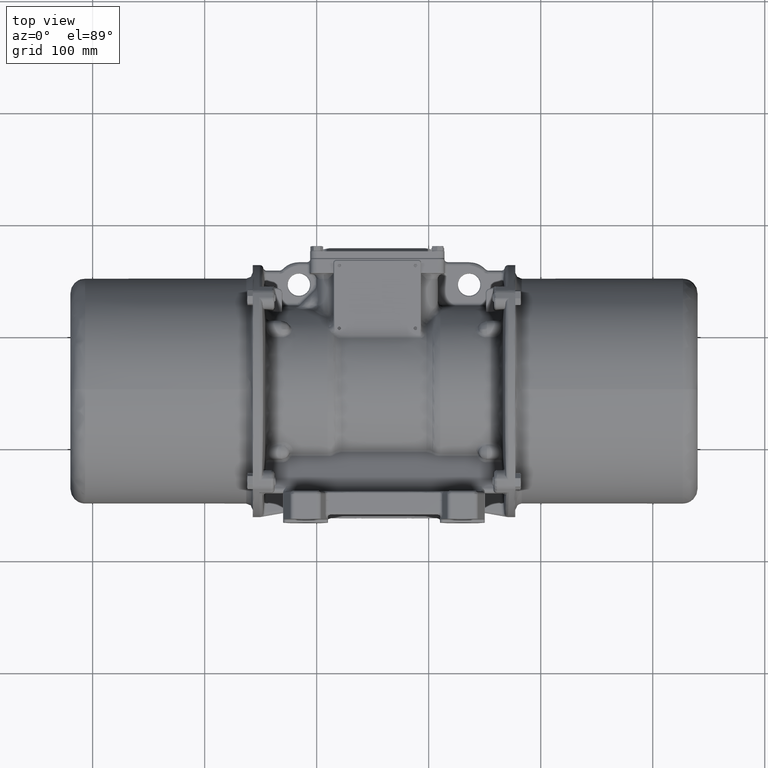
[diagram: clean part render]
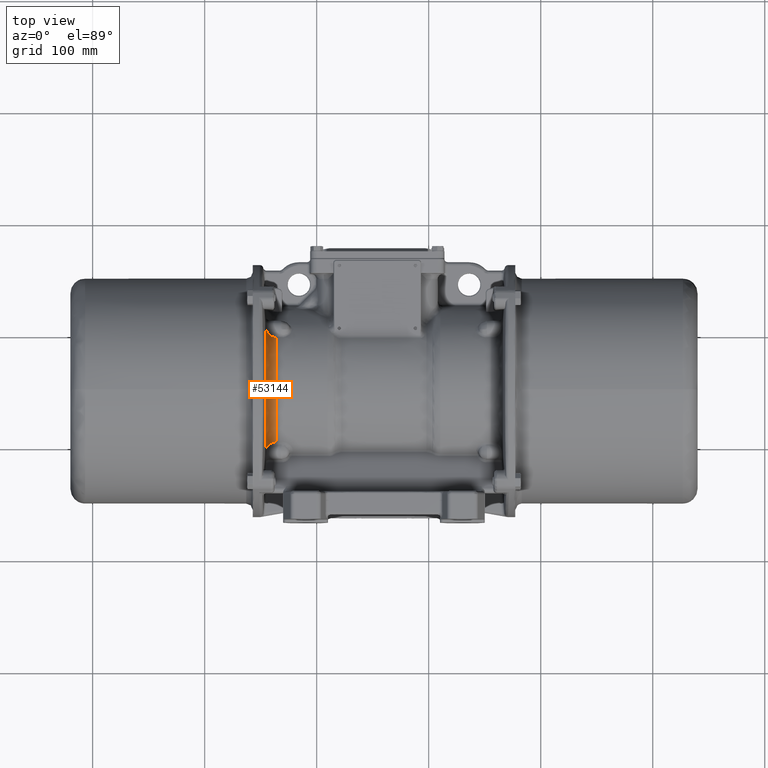
[diagram: same view with one face highlighted and labeled with its STEP entity id]
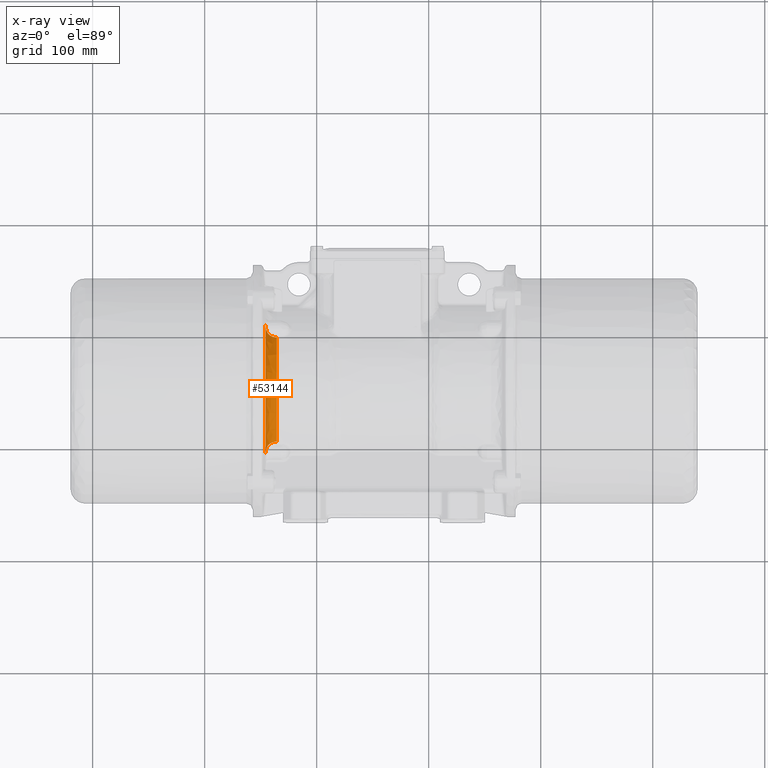
[diagram: x-ray of the same camera — body ghosted, the highlighted face saturated]
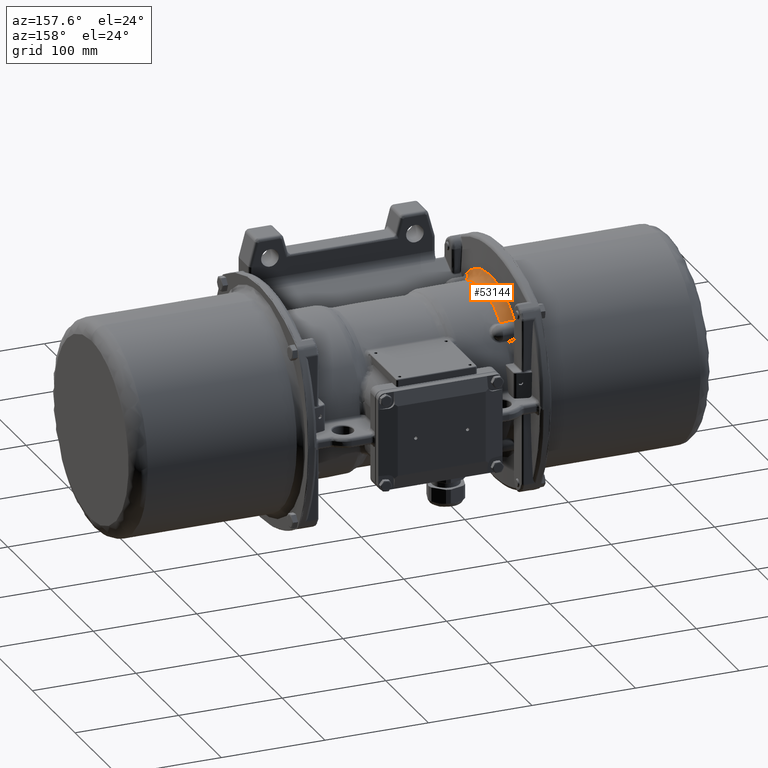
[diagram: same view with one face highlighted and labeled with its STEP entity id]
A machine part, top view. The second image highlights one B-rep face of the part: STEP entity #53144.
The next image is the same camera in x-ray: the body ghosted, the highlighted face saturated — about 0% of this face is hidden behind the body in this view.
A second angle (auxiliary view) of the same face is appended — the face is thin or edge-on in the first view.
In plain terms, the highlighted face is a freeform B-spline surface patch.
Its self-contained STEP definition (entity closure, byte-faithful):
#520 = CARTESIAN_POINT ( 'NONE',  ( -142.5077446967135900, 779.3587052462286200, 9.230455600188939500 ) ) ;
#1082 = CARTESIAN_POINT ( 'NONE',  ( -144.3957904430214400, 696.7704500129706300, -3.063948907812495700 ) ) ;
#1653 = CARTESIAN_POINT ( 'NONE',  ( -142.5077453970952800, 698.4245979816685100, -4.970056409340103600 ) ) ;
#3982 = CARTESIAN_POINT ( 'NONE',  ( -143.3464949321814000, 700.6518876849644400, -1.537818146740758300 ) ) ;
#4445 = CARTESIAN_POINT ( 'NONE',  ( -145.5557889681976500, 720.5663174646668900, 16.24945134960585600 ) ) ;
#4525 = CARTESIAN_POINT ( 'NONE',  ( -144.7894314446837700, 698.1803257343574400, -0.5027693857013314500 ) ) ;
#5698 = CARTESIAN_POINT ( 'NONE',  ( -145.5557889681976700, 697.9678305674347000, 3.469440319891926400 ) ) ;
#5748 = CARTESIAN_POINT ( 'NONE',  ( -141.9546256849936900, 798.9410004199087300, -2.725875379833544900 ) ) ;
#6305 = CARTESIAN_POINT ( 'NONE',  ( -145.5557893416661000, 807.9189332914417000, -1.374033864352183900 ) ) ;
#6309 = CARTESIAN_POINT ( 'NONE',  ( -143.3163920306446100, 800.2516862259096800, -2.031646002320817600 ) ) ;
#7438 = CARTESIAN_POINT ( 'NONE',  ( -145.5333110613728100, 807.3353885860622100, -1.189034737036057900 ) ) ;
#7855 = B_SPLINE_CURVE_WITH_KNOTS ( 'NONE', 3,
 ( #97712, #30724, #57383, #121627, #56821, #83547, #45478, #122176, #43775, #44907, #160154, #136319, #147653, #58490, #18257, #5748, #44344, #109064, #134096, #6309, #18820, #160711, #149335, #109628, #19959, #82986, #97152, #71037, #122742, #32429 ),
 .UNSPECIFIED., .F., .F.,
 ( 4, 2, 2, 2, 2, 1, 1, 1, 1, 2, 2, 2, 2, 2, 2, 2, 4 ),
 ( 0.0000000000000000000, 0.1250000000004848900, 0.2500000000009697800, 0.3750000000014546700, 0.4375000000016913100, 0.4687500000018166600, 0.4843750000018792700, 0.4921875000019054200, 0.4960937500019131400, 0.4980468750019088600, 0.5000000000019044800, 0.6250000000014378500, 0.6875000000012025900, 0.7500000000009673400, 0.8125000000007320800, 0.8750000000004967100, 1.000000000000000000 ),
 .UNSPECIFIED. ) ;
#7944 = CARTESIAN_POINT ( 'NONE',  ( -145.5557889681977000, 781.8255729297828800, 15.47108491240754800 ) ) ;
#10829 = CARTESIAN_POINT ( 'NONE',  ( -135.5938461355628100, 711.0975621852622900, 1.657687733680759800 ) ) ;
#11937 = CARTESIAN_POINT ( 'NONE',  ( -136.2110980237831700, 711.0975620816761900, 1.657687917715061600 ) ) ;
#12488 = CARTESIAN_POINT ( 'NONE',  ( -139.8290172780587000, 765.2002792703298200, 11.65335643199047400 ) ) ;
#13057 = CARTESIAN_POINT ( 'NONE',  ( -137.4489689215179200, 703.4609636101715800, -3.697102894446683900 ) ) ;
#13635 = CARTESIAN_POINT ( 'NONE',  ( -145.2792948758250600, 695.2552080520066500, -1.317905557821533100 ) ) ;
#14206 = CARTESIAN_POINT ( 'NONE',  ( -145.5019918775986100, 751.2596632312404400, 20.87502913832105400 ) ) ;
#14756 = CARTESIAN_POINT ( 'NONE',  ( -145.2792948744463500, 707.3736310102524400, 7.972159279914140300 ) ) ;
#17617 = CARTESIAN_POINT ( 'NONE',  ( -145.5557888022031800, 694.0536394747855400, 0.07298018463589017700 ) ) ;
#18175 = CARTESIAN_POINT ( 'NONE',  ( -145.1745936813181000, 696.8520191747503500, -0.1721667830302969500 ) ) ;
#18257 = CARTESIAN_POINT ( 'NONE',  ( -141.9433417470337700, 798.9324841677467900, -2.730975229813108000 ) ) ;
#18820 = CARTESIAN_POINT ( 'NONE',  ( -143.4754916972303000, 800.4555403952356300, -1.939830551712276000 ) ) ;
#19301 = CARTESIAN_POINT ( 'NONE',  ( -145.5179294418950900, 694.6361561404594300, 0.08154623016550230400 ) ) ;
#19959 = CARTESIAN_POINT ( 'NONE',  ( -144.2906310311515500, 801.7805034444439800, -1.446112289863432700 ) ) ;
#22586 = CARTESIAN_POINT ( 'NONE',  ( -135.5938458369344100, 720.1375824106064600, 6.045949109329456800 ) ) ;
#24263 = B_SPLINE_CURVE_WITH_KNOTS ( 'NONE', 3,
 ( #61699, #33957, #36179, #124837, #87889, #62266, #88459, #165022, #74236, #22586, #127087, #46972, #75361 ),
 .UNSPECIFIED., .F., .F.,
 ( 4, 1, 1, 1, 1, 1, 1, 1, 1, 1, 4 ),
 ( 0.0000000000000000000, 0.03694085548629370800, 0.1474889658366914400, 0.2580370761870889300, 0.3685851865374863400, 0.4791332968878840900, 0.5896814072382818800, 0.7002295175886793500, 0.8107776279390768200, 0.9213257382894746200, 1.000000000000000000 ),
 .UNSPECIFIED. ) ;
#24394 = CARTESIAN_POINT ( 'NONE',  ( -136.2110959218446700, 778.4513045893371600, 6.934932846239597400 ) ) ;
#24958 = CARTESIAN_POINT ( 'NONE',  ( -136.2110983702237100, 700.0335368192187400, -6.824068557459615800 ) ) ;
#25534 = CARTESIAN_POINT ( 'NONE',  ( -144.3957903504554800, 736.3808576164321900, 16.15829642698528400 ) ) ;
#26100 = CARTESIAN_POINT ( 'NONE',  ( -144.3957903197270400, 751.2145028486598900, 17.32081896978905500 ) ) ;
#26671 = CARTESIAN_POINT ( 'NONE',  ( -142.5077448103224100, 765.5231745014220900, 13.29192766900203000 ) ) ;
#27239 = CARTESIAN_POINT ( 'NONE',  ( -137.4489665483845000, 790.9819067933859700, 0.7417411607580359800 ) ) ;
#27793 = CARTESIAN_POINT ( 'NONE',  ( -144.3957902301900200, 801.4810624466276700, -1.114189583581642900 ) ) ;
#29096 = VERTEX_POINT ( 'NONE', #29438 ) ;
#29438 = CARTESIAN_POINT ( 'NONE',  ( -145.5557893416661000, 807.9189332914417000, -1.374033864352183900 ) ) ;
#30551 = CARTESIAN_POINT ( 'NONE',  ( -145.5019918687797800, 694.4535467426018200, -0.3941353401064745500 ) ) ;
#30724 = CARTESIAN_POINT ( 'NONE',  ( -136.2781062166057500, 797.0089005701964900, -4.114822174895859800 ) ) ;
#31199 = CARTESIAN_POINT ( 'NONE',  ( -143.1881751770021900, 700.8355105505193000, -1.633789704063853600 ) ) ;
#31285 = CARTESIAN_POINT ( 'NONE',  ( -145.4237144116011100, 806.0427211933503000, -0.9891981011166675100 ) ) ;
#32429 = CARTESIAN_POINT ( 'NONE',  ( -145.1318730675964400, 804.2365273336404200, -0.9721437702152058200 ) ) ;
#32651 = CARTESIAN_POINT ( 'NONE',  ( -135.5938432976078000, 797.0090391670657900, -4.114642618660068900 ) ) ;
#33957 = CARTESIAN_POINT ( 'NONE',  ( -135.5938433297500600, 796.0345934828694700, -3.359868193515363400 ) ) ;
#34346 = CARTESIAN_POINT ( 'NONE',  ( -135.5938463733376400, 703.9019737329576900, -3.682170902403338000 ) ) ;
#36179 = CARTESIAN_POINT ( 'NONE',  ( -135.5938434606885300, 792.0708477494602000, -0.4409231626013021500 ) ) ;
#36358 = CARTESIAN_POINT ( 'NONE',  ( -135.5938434986885300, 790.9205210343895900, 0.6434489600648657400 ) ) ;
#37462 = CARTESIAN_POINT ( 'NONE',  ( -136.2110972073092200, 737.2236332966055000, 11.22364187176383500 ) ) ;
#38027 = CARTESIAN_POINT ( 'NONE',  ( -136.2110967726746700, 751.1508997022851900, 12.31513097032763100 ) ) ;
#38220 = VERTEX_POINT ( 'NONE', #34346 ) ;
#38590 = CARTESIAN_POINT ( 'NONE',  ( -145.5019918895281100, 803.7070456465558000, 1.640215028972810800 ) ) ;
#39152 = CARTESIAN_POINT ( 'NONE',  ( -142.5077453634986300, 702.0345293123173200, -1.837304963637598200 ) ) ;
#39723 = CARTESIAN_POINT ( 'NONE',  ( -145.5019918905948100, 807.5070313278483800, -1.830604687231576700 ) ) ;
#40292 = CARTESIAN_POINT ( 'NONE',  ( -139.8290175380431900, 751.1610420897560500, 13.11335466755715600 ) ) ;
#40848 = CARTESIAN_POINT ( 'NONE',  ( -145.2792948811133700, 781.1461612513560300, 13.75232371405311900 ) ) ;
#42007 = CARTESIAN_POINT ( 'NONE',  ( -145.5557888022031800, 694.0536394747855400, 0.07298018463589017700 ) ) ;
#42511 = CARTESIAN_POINT ( 'NONE',  ( -145.5557889681976700, 766.8205961050046000, 19.87585212936852800 ) ) ;
#43144 = CARTESIAN_POINT ( 'NONE',  ( -145.4740928014300300, 695.0748689191018500, 0.06217464672085741600 ) ) ;
#43608 = CARTESIAN_POINT ( 'NONE',  ( -145.5557889681976700, 804.0942533638816500, 2.119341162964944100 ) ) ;
#43686 = CARTESIAN_POINT ( 'NONE',  ( -140.7315669573917800, 702.7535034722008000, -2.807572126198563600 ) ) ;
#43775 = CARTESIAN_POINT ( 'NONE',  ( -141.1927320206340000, 798.4261017670887700, -3.049176470165767300 ) ) ;
#44259 = CARTESIAN_POINT ( 'NONE',  ( -144.1047127370424900, 699.5835241562028800, -1.032741418836922400 ) ) ;
#44344 = CARTESIAN_POINT ( 'NONE',  ( -141.9589249480301000, 798.9442514521086900, -2.723930293139420900 ) ) ;
#44904 = CARTESIAN_POINT ( 'NONE',  ( -145.3866879653648100, 805.7265201676234500, -0.9625741189335388400 ) ) ;
#44907 = CARTESIAN_POINT ( 'NONE',  ( -141.4948241421292300, 798.6170200945262000, -2.925900560013150500 ) ) ;
#45385 = CARTESIAN_POINT ( 'NONE',  ( -145.2745909144817900, 696.4076730598575300, -0.08629532136615610000 ) ) ;
#45478 = CARTESIAN_POINT ( 'NONE',  ( -140.3102314685905300, 797.9554654011690200, -3.371552878922795300 ) ) ;
#46019 = CARTESIAN_POINT ( 'NONE',  ( -145.3337314583475900, 805.3335055917351600, -0.9428047210588219600 ) ) ;
#46972 = CARTESIAN_POINT ( 'NONE',  ( -135.5938463042082300, 705.9923584116846800, -2.094167951675612600 ) ) ;
#49396 = CARTESIAN_POINT ( 'NONE',  ( -135.5938452725133100, 737.2236333197867000, 11.22364170802625500 ) ) ;
#49941 = CARTESIAN_POINT ( 'NONE',  ( -135.5938463855092700, 703.5312311168562500, -3.788718314034544800 ) ) ;
#50495 = CARTESIAN_POINT ( 'NONE',  ( -135.5938465010521800, 700.0335369680503800, -6.824068732391372000 ) ) ;
#51613 = CARTESIAN_POINT ( 'NONE',  ( -137.4489683685035600, 723.6827590046668800, 7.739139551599799400 ) ) ;
#52175 = CARTESIAN_POINT ( 'NONE',  ( -145.5019918747494200, 735.7824579657207100, 19.66207029144440100 ) ) ;
#52741 = CARTESIAN_POINT ( 'NONE',  ( -142.5077445071181600, 803.4209952433443500, -6.304152219899959800 ) ) ;
#53144 = ADVANCED_FACE ( 'NONE', ( #139721 ), #150017, .T. ) ;
#53304 = CARTESIAN_POINT ( 'NONE',  ( -142.5077445340344600, 799.8918266958098700, -3.080690617746302700 ) ) ;
#53868 = CARTESIAN_POINT ( 'NONE',  ( -137.4489663494570900, 798.4185989015953700, -4.903644791099233100 ) ) ;
#56159 = CARTESIAN_POINT ( 'NONE',  ( -143.2548276418987100, 700.7593779527759400, -1.593711258947289300 ) ) ;
#56649 = CARTESIAN_POINT ( 'NONE',  ( -145.5557889681976500, 795.7826916595843200, 8.428863267343114500 ) ) ;
#56731 = CARTESIAN_POINT ( 'NONE',  ( -143.6667727991389800, 700.2418778245767000, -1.333646536497180300 ) ) ;
#56821 = CARTESIAN_POINT ( 'NONE',  ( -138.7495254689793300, 797.3983958471898200, -3.792697231059075900 ) ) ;
#56865 = ORIENTED_EDGE ( 'NONE', *, *, #64565, .T. ) ;
#57287 = CARTESIAN_POINT ( 'NONE',  ( -143.9395405365223700, 699.8517968163580500, -1.150449959407093400 ) ) ;
#57380 = CARTESIAN_POINT ( 'NONE',  ( -145.4966429218037000, 806.7340007085418800, -1.064212050702307600 ) ) ;
#57383 = CARTESIAN_POINT ( 'NONE',  ( -136.9361457826349200, 797.0630099956326800, -4.067388555789123400 ) ) ;
#57845 = CARTESIAN_POINT ( 'NONE',  ( -142.3311508242882200, 701.7002455958659100, -2.118299114310629300 ) ) ;
#58401 = CARTESIAN_POINT ( 'NONE',  ( -143.5716842007283800, 700.3698469417821600, -1.395812480534055000 ) ) ;
#58436 = CARTESIAN_POINT ( 'NONE',  ( -145.5557889681976700, 735.6783668991289500, 20.27154851503640400 ) ) ;
#58490 = CARTESIAN_POINT ( 'NONE',  ( -141.9263848011737000, 798.9197221239099900, -2.738627644613676800 ) ) ;
#61699 = CARTESIAN_POINT ( 'NONE',  ( -135.5938432976078000, 797.0090391670657900, -4.114642618660068900 ) ) ;
#62256 = CARTESIAN_POINT ( 'NONE',  ( -145.1318730675964400, 804.2365273336404200, -0.9721437702152058200 ) ) ;
#62266 = CARTESIAN_POINT ( 'NONE',  ( -135.5938443992164900, 763.6599066251484400, 10.97188705588665600 ) ) ;
#64565 = EDGE_CURVE ( 'NONE', #153310, #29096, #159643, .T. ) ;
#64698 = CARTESIAN_POINT ( 'NONE',  ( -142.5077445935995400, 792.2280449976660700, 2.737084969766143200 ) ) ;
#65164 = ORIENTED_EDGE ( 'NONE', *, *, #163244, .T. ) ;
#65256 = CARTESIAN_POINT ( 'NONE',  ( -145.5019918722619300, 720.7789290963683000, 15.66885606868960500 ) ) ;
#65815 = CARTESIAN_POINT ( 'NONE',  ( -142.5077452919113300, 709.8436556719916600, 3.783870200913433300 ) ) ;
#66378 = CARTESIAN_POINT ( 'NONE',  ( -137.4489672458148600, 765.0683425636862000, 10.98382757172040900 ) ) ;
#66926 = CARTESIAN_POINT ( 'NONE',  ( -137.4489680005563300, 737.2041240344541400, 11.33787334681181300 ) ) ;
#67487 = CARTESIAN_POINT ( 'NONE',  ( -145.5557889681976700, 807.9217243575077400, -1.376583002639209000 ) ) ;
#68512 = B_SPLINE_CURVE_WITH_KNOTS ( 'NONE', 3,
 ( #17617, #161733, #19301, #43144, #135677, #120976, #146997, #95944, #107866, #68693, #45385, #18175, #82335, #136228, #108969, #134018, #81783, #4525, #121537, #44259, #57287, #56731, #58401, #159502, #3982, #56159, #70386, #31199, #69254, #134560, #83462, #57845, #70950, #43686, #148135, #147563, #69816, #94838, #161178 ),
 .UNSPECIFIED., .F., .F.,
 ( 4, 2, 2, 2, 2, 2, 1, 1, 2, 2, 2, 2, 2, 1, 1, 1, 2, 2, 2, 2, 2, 4 ),
 ( 0.0000000000000000000, 0.06250000000026804900, 0.09375000000039004900, 0.1093750000004626400, 0.1250000000005352400, 0.1875000000007564200, 0.2187500000008670300, 0.2343750000009118000, 0.2421875000009237600, 0.2500000000009357000, 0.3750000000011747800, 0.4375000000012931900, 0.4687500000013445900, 0.4843750000013629100, 0.4921875000013705700, 0.4960937500013744000, 0.4980468750013763400, 0.5000000000013782300, 0.6250000000010337300, 0.7500000000006891200, 0.8750000000003446100, 1.000000000000000000 ),
 .UNSPECIFIED. ) ;
#68693 = CARTESIAN_POINT ( 'NONE',  ( -145.3305584078669900, 696.1085475397663900, -0.03924064654467584300 ) ) ;
#69254 = CARTESIAN_POINT ( 'NONE',  ( -143.1747387140278000, 700.8506783661932800, -1.641818307481720300 ) ) ;
#69816 = CARTESIAN_POINT ( 'NONE',  ( -137.2435497703299300, 703.8188916581949600, -3.611821489171648900 ) ) ;
#70386 = CARTESIAN_POINT ( 'NONE',  ( -143.2082785459540400, 700.8127303190503900, -1.621752888688842800 ) ) ;
#70950 = CARTESIAN_POINT ( 'NONE',  ( -141.3084252568375500, 702.4284764669663400, -2.582508319598423500 ) ) ;
#71037 = CARTESIAN_POINT ( 'NONE',  ( -144.8792440640273200, 803.2354366469558000, -1.087598822644867400 ) ) ;
#72146 = CARTESIAN_POINT ( 'NONE',  ( -145.2014246242300400, 804.5486974235433300, -0.9476731974069738700 ) ) ;
#72449 = B_SPLINE_CURVE_WITH_KNOTS ( 'NONE', 3,
 ( #85730, #98221, #72653, #7944, #137947, #122689, #58436, #161210, #83495, #5698, #126630 ),
 .UNSPECIFIED., .F., .F.,
 ( 4, 1, 1, 1, 1, 1, 1, 1, 4 ),
 ( 0.0000000000000000000, 0.1249775582701484900, 0.2499855017061681500, 0.3749934452210931200, 0.5000013888208777500, 0.6250093325086776300, 0.7500172762847444600, 0.8750252201464184800, 1.000000000000000000 ),
 .UNSPECIFIED. ) ;
#72653 = CARTESIAN_POINT ( 'NONE',  ( -145.5557889681976200, 795.7815608290835600, 8.429433840624224000 ) ) ;
#74236 = CARTESIAN_POINT ( 'NONE',  ( -135.5938454901740300, 730.6346475308024500, 9.637604714839787000 ) ) ;
#75361 = CARTESIAN_POINT ( 'NONE',  ( -135.5938463733376400, 703.9019737329576900, -3.682170902403338000 ) ) ;
#76092 = CARTESIAN_POINT ( 'NONE',  ( -136.2110951968412800, 801.7654690527178900, -8.116685152818284600 ) ) ;
#76654 = CARTESIAN_POINT ( 'NONE',  ( -136.2110963394321500, 765.0459371780382300, 10.87012875158896500 ) ) ;
#77786 = CARTESIAN_POINT ( 'NONE',  ( -144.3957904333863100, 700.4957722064983700, 0.1689404385707693500 ) ) ;
#78335 = CARTESIAN_POINT ( 'NONE',  ( -139.8290170293529700, 778.7447646637438100, 7.677321827878794000 ) ) ;
#78905 = CARTESIAN_POINT ( 'NONE',  ( -145.5019918702187200, 706.7488662271556400, 9.031539596009331200 ) ) ;
#79422 = ORIENTED_EDGE ( 'NONE', *, *, #143896, .F. ) ;
#79462 = CARTESIAN_POINT ( 'NONE',  ( -145.2792948745897700, 735.9895075457009200, 18.44974521201293900 ) ) ;
#80030 = CARTESIAN_POINT ( 'NONE',  ( -139.8290180575211800, 723.4481051338668700, 8.379927349678808900 ) ) ;
#80587 = CARTESIAN_POINT ( 'NONE',  ( -145.5557889681977000, 706.4347751166308200, 9.564127137184797800 ) ) ;
#81783 = CARTESIAN_POINT ( 'NONE',  ( -144.9857887793081900, 697.5458628308111900, -0.3349843767323269500 ) ) ;
#82253 = CARTESIAN_POINT ( 'NONE',  ( -145.5557889681977000, 751.2675188372882100, 21.49328071016989800 ) ) ;
#82335 = CARTESIAN_POINT ( 'NONE',  ( -145.1205818740328900, 697.0731072875997800, -0.2189236034388624400 ) ) ;
#82986 = CARTESIAN_POINT ( 'NONE',  ( -144.5102593959631500, 802.2573435610378300, -1.310001641377310300 ) ) ;
#83462 = CARTESIAN_POINT ( 'NONE',  ( -142.7766645819463900, 701.2966728912852000, -1.878713771084022500 ) ) ;
#83495 = CARTESIAN_POINT ( 'NONE',  ( -145.5557889681977000, 706.4360247964580100, 9.564718333432235700 ) ) ;
#83547 = CARTESIAN_POINT ( 'NONE',  ( -139.8188881577222300, 797.7473225967841000, -3.525211931961738100 ) ) ;
#84095 = CARTESIAN_POINT ( 'NONE',  ( -145.3561233982164300, 805.4906979217813600, -0.9484464795434860400 ) ) ;
#85730 = CARTESIAN_POINT ( 'NONE',  ( -145.5557893416661000, 807.9189332914417000, -1.374033864352183900 ) ) ;
#87889 = CARTESIAN_POINT ( 'NONE',  ( -135.5938440440116900, 774.4125996289092200, 8.238650535796892900 ) ) ;
#88240 = EDGE_CURVE ( 'NONE', #90135, #38220, #68512, .T. ) ;
#88459 = CARTESIAN_POINT ( 'NONE',  ( -135.5938447637266800, 752.6255237684299600, 12.12662659291545400 ) ) ;
#89738 = CARTESIAN_POINT ( 'NONE',  ( -136.2110976290281600, 723.7226077525863300, 7.630321421596308400 ) ) ;
#90135 = VERTEX_POINT ( 'NONE', #42007 ) ;
#90305 = CARTESIAN_POINT ( 'NONE',  ( -144.3957902422536100, 793.5723091600507400, 4.889550260142441700 ) ) ;
#90866 = CARTESIAN_POINT ( 'NONE',  ( -145.5019918807155600, 766.7010528760857800, 19.26921540054987900 ) ) ;
#91434 = CARTESIAN_POINT ( 'NONE',  ( -145.2792948889043900, 806.6821572943712200, -2.733708118332907500 ) ) ;
#91989 = CARTESIAN_POINT ( 'NONE',  ( -145.5019918873356300, 795.4551697948018000, 7.904428062693994200 ) ) ;
#92535 = CARTESIAN_POINT ( 'NONE',  ( -144.3957903820044100, 722.0011927425407500, 12.33112472403201400 ) ) ;
#94838 = CARTESIAN_POINT ( 'NONE',  ( -136.4338796246397900, 703.9020958886575300, -3.682331745159748600 ) ) ;
#95944 = CARTESIAN_POINT ( 'NONE',  ( -145.3995662286629100, 695.6607720389660000, 0.01338110152311202400 ) ) ;
#97152 = CARTESIAN_POINT ( 'NONE',  ( -144.6104711749575800, 802.5018746397483900, -1.248188966347632900 ) ) ;
#97712 = CARTESIAN_POINT ( 'NONE',  ( -135.5938432976078000, 797.0090391670657900, -4.114642618660068900 ) ) ;
#98221 = CARTESIAN_POINT ( 'NONE',  ( -145.5557889681977300, 804.0922330968230700, 2.120874765112435300 ) ) ;
#102725 = CARTESIAN_POINT ( 'NONE',  ( -136.2110982606487500, 703.5312309823774500, -3.788718135152358000 ) ) ;
#103298 = CARTESIAN_POINT ( 'NONE',  ( -139.8290185148501600, 699.5131939199054600, -6.224467100809899700 ) ) ;
#103859 = CARTESIAN_POINT ( 'NONE',  ( -139.8290178007461900, 737.0892414797932600, 12.01053842461549700 ) ) ;
#104420 = CARTESIAN_POINT ( 'NONE',  ( -145.5019918839977600, 781.5982780172358800, 14.89607908155118900 ) ) ;
#104985 = CARTESIAN_POINT ( 'NONE',  ( -145.5019918691963900, 698.3404926038659800, 2.979013426860868600 ) ) ;
#105550 = CARTESIAN_POINT ( 'NONE',  ( -137.4489687137586600, 711.0386935110924500, 1.757508228724211200 ) ) ;
#107866 = CARTESIAN_POINT ( 'NONE',  ( -145.3890571379479300, 695.7320195622603500, 0.005566961261573835100 ) ) ;
#108969 = CARTESIAN_POINT ( 'NONE',  ( -145.0181135031093000, 697.4380497270991600, -0.3072664342083871200 ) ) ;
#109064 = CARTESIAN_POINT ( 'NONE',  ( -142.4109120667655500, 799.2872908088011200, -2.519044628431995400 ) ) ;
#109628 = CARTESIAN_POINT ( 'NONE',  ( -144.1711880704243400, 801.5477845071191000, -1.520462713264682200 ) ) ;
#115811 = CARTESIAN_POINT ( 'NONE',  ( -137.4489662580895700, 801.8431927791247100, -8.031590272239554900 ) ) ;
#115853 = EDGE_LOOP ( 'NONE', ( #148396, #79422, #150921, #56865, #65164 ) ) ;
#116377 = CARTESIAN_POINT ( 'NONE',  ( -145.2792948759682500, 751.2440374906659600, 19.64525281991333500 ) ) ;
#116948 = CARTESIAN_POINT ( 'NONE',  ( -139.8290166036491700, 802.3008783727572100, -7.530498710479394100 ) ) ;
#117521 = CARTESIAN_POINT ( 'NONE',  ( -144.3957902908298400, 766.0138216873382400, 15.78177674395964100 ) ) ;
#118089 = CARTESIAN_POINT ( 'NONE',  ( -137.4489690177929900, 699.9580001133683700, -6.737026107223528900 ) ) ;
#118656 = CARTESIAN_POINT ( 'NONE',  ( -144.3957904133211200, 708.5545160090423500, 5.969795575036823900 ) ) ;
#120898 = CARTESIAN_POINT ( 'NONE',  ( -145.5557889681976700, 694.0505235606191300, 0.07027626107410089900 ) ) ;
#120976 = CARTESIAN_POINT ( 'NONE',  ( -145.4299013498315100, 695.4409784726120700, 0.03484334396080629400 ) ) ;
#121537 = CARTESIAN_POINT ( 'NONE',  ( -144.5533441514168100, 698.7580105875543900, -0.6990091785801734200 ) ) ;
#121624 = CARTESIAN_POINT ( 'NONE',  ( -145.2597694855027400, 804.8623114625756900, -0.9369046825438229800 ) ) ;
#121627 = CARTESIAN_POINT ( 'NONE',  ( -138.1715650708692400, 797.2577537835683200, -3.906321643687382700 ) ) ;
#122176 = CARTESIAN_POINT ( 'NONE',  ( -140.9804163575366000, 798.3038902728648100, -3.131054858647528400 ) ) ;
#122689 = CARTESIAN_POINT ( 'NONE',  ( -145.5557889681977000, 751.2675188372882100, 21.49328071016984500 ) ) ;
#122742 = CARTESIAN_POINT ( 'NONE',  ( -145.0200024218345900, 803.7335997061587700, -1.011606478133493000 ) ) ;
#124837 = CARTESIAN_POINT ( 'NONE',  ( -135.5938437055312400, 784.6590147999988900, 3.984010145642161000 ) ) ;
#126630 = CARTESIAN_POINT ( 'NONE',  ( -145.5557888022031800, 694.0536394747855400, 0.07298018463589017700 ) ) ;
#127087 = CARTESIAN_POINT ( 'NONE',  ( -135.5938461316485500, 711.2160528545838400, 1.465265668119106700 ) ) ;
#127261 = CARTESIAN_POINT ( 'NONE',  ( -135.5938443534304000, 765.0459371505464800, 10.87012863706612900 ) ) ;
#128918 = CARTESIAN_POINT ( 'NONE',  ( -135.5938432533941400, 798.3460265545901400, -4.993444920582776400 ) ) ;
#129477 = CARTESIAN_POINT ( 'NONE',  ( -145.2792948874642000, 802.9368431865369800, 0.6871758455661292100 ) ) ;
#130035 = CARTESIAN_POINT ( 'NONE',  ( -145.2792948847088600, 794.8036896338785500, 6.861263718865695100 ) ) ;
#130606 = CARTESIAN_POINT ( 'NONE',  ( -137.4489668838668300, 778.4939053065932100, 7.042703209790182900 ) ) ;
#131158 = CARTESIAN_POINT ( 'NONE',  ( -142.5077450537191100, 736.8080837135949000, 13.65678484619140000 ) ) ;
#131718 = CARTESIAN_POINT ( 'NONE',  ( -145.2792948752741900, 699.0862312329836600, 2.006712676066197100 ) ) ;
#132279 = CARTESIAN_POINT ( 'NONE',  ( -145.5557889681976700, 735.6783668991289500, 20.27154851503644300 ) ) ;
#133937 = CARTESIAN_POINT ( 'NONE',  ( -145.5557889681977000, 781.8255729297828800, 15.47108491240759100 ) ) ;
#134018 = CARTESIAN_POINT ( 'NONE',  ( -144.9964610566265700, 697.5107009058732500, -0.3258437042188304700 ) ) ;
#134096 = CARTESIAN_POINT ( 'NONE',  ( -142.8025296658918000, 799.6584329635414900, -2.316502588605102300 ) ) ;
#134560 = CARTESIAN_POINT ( 'NONE',  ( -143.1672600624126800, 700.8590855096106200, -1.646276971394619900 ) ) ;
#135677 = CARTESIAN_POINT ( 'NONE',  ( -145.4576388258991000, 695.2212642659661700, 0.05289177986430571000 ) ) ;
#136228 = CARTESIAN_POINT ( 'NONE',  ( -145.0500250693627000, 697.3289066095294400, -0.2798358279851452200 ) ) ;
#136314 = CARTESIAN_POINT ( 'NONE',  ( -145.3963720933891200, 805.8051333801997800, -0.9682271914822180300 ) ) ;
#136319 = CARTESIAN_POINT ( 'NONE',  ( -141.8061615574632100, 798.8310003714533400, -2.792312406375295100 ) ) ;
#137947 = CARTESIAN_POINT ( 'NONE',  ( -145.5557889681976700, 766.8205961050046000, 19.87585212936848900 ) ) ;
#139721 = FACE_OUTER_BOUND ( 'NONE', #115853, .T. ) ;
#140260 = CARTESIAN_POINT ( 'NONE',  ( -135.5938457185066000, 723.7226078134328900, 7.630321242837162300 ) ) ;
#141924 = CARTESIAN_POINT ( 'NONE',  ( -135.5938439105970300, 778.4513045501008700, 6.934932759396438900 ) ) ;
#142481 = CARTESIAN_POINT ( 'NONE',  ( -139.8290166653235900, 798.8459497017286100, -4.374846109435267700 ) ) ;
#143043 = CARTESIAN_POINT ( 'NONE',  ( -144.3957902647160800, 780.2916029843131600, 11.59048041236178300 ) ) ;
#143614 = CARTESIAN_POINT ( 'NONE',  ( -142.5077449306450900, 751.1822606872201500, 14.78329851239829100 ) ) ;
#143896 = EDGE_CURVE ( 'NONE', #167068, #38220, #24263, .T. ) ;
#144175 = CARTESIAN_POINT ( 'NONE',  ( -142.5077451754942800, 722.8738251598812200, 9.948158821381072800 ) ) ;
#144735 = CARTESIAN_POINT ( 'NONE',  ( -137.4489676221750200, 751.1523720482574600, 12.43100674542914400 ) ) ;
#146375 = CARTESIAN_POINT ( 'NONE',  ( -145.5557889681976700, 697.9655837093884000, 3.467823024582123100 ) ) ;
#146997 = CARTESIAN_POINT ( 'NONE',  ( -145.4201460114297500, 695.5142366034340300, 0.02814006551479176000 ) ) ;
#147563 = CARTESIAN_POINT ( 'NONE',  ( -138.7521758211428600, 703.5170997021516500, -3.372343482274837300 ) ) ;
#147653 = CARTESIAN_POINT ( 'NONE',  ( -141.8866010715583700, 798.8900309052980900, -2.756500994188902300 ) ) ;
#148135 = CARTESIAN_POINT ( 'NONE',  ( -139.4532545178013300, 703.2981078864083900, -3.202896855054200300 ) ) ;
#148396 = ORIENTED_EDGE ( 'NONE', *, *, #88240, .T. ) ;
#149335 = CARTESIAN_POINT ( 'NONE',  ( -143.9118520491602700, 801.0950040744697800, -1.679720925451478400 ) ) ;
#150017 = B_SPLINE_SURFACE_WITH_KNOTS ( 'NONE', 3, 3, ( 
 ( #165747, #128918, #36358, #141924, #127261, #153836, #49396, #140260, #10829, #49941, #50495 ),
 ( #76092, #166845, #154938, #24394, #76654, #38027, #37462, #89738, #11937, #102725, #24958 ),
 ( #115811, #53868, #27239, #130606, #66378, #144735, #66926, #51613, #105550, #13057, #118089 ),
 ( #116948, #142481, #157747, #78335, #12488, #40292, #103859, #80030, #155503, #156068, #103298 ),
 ( #52741, #53304, #64698, #520, #26671, #143614, #131158, #144175, #65815, #39152, #1653 ),
 ( #156630, #27793, #90305, #143043, #117521, #26100, #25534, #92535, #118656, #77786, #1082 ),
 ( #91434, #129477, #130035, #40848, #157193, #116377, #79462, #168533, #14756, #131718, #13635 ),
 ( #39723, #38590, #91989, #104420, #90866, #14206, #52175, #65256, #78905, #104985, #30551 ),
 ( #67487, #43608, #56649, #133937, #42511, #82253, #132279, #4445, #80587, #146375, #120898 ) ),
 .UNSPECIFIED., .F., .F., .F.,
 ( 4, 1, 1, 1, 1, 1, 4 ),
 ( 4, 1, 1, 1, 1, 1, 1, 1, 4 ),
 ( 0.0000000000000000000, 1.851755884642505100, 3.703511787516550000, 7.391115301608222100, 11.07871888831278200, 12.93047488234450300, 14.78223089460775900 ),
 ( 0.0000000000000000000, 14.55468968184810500, 29.10937937188699100, 43.66406907111282700, 58.21875878021889200, 72.77344849957258100, 87.32813822920319100, 101.8828279688010700, 116.4375177177279400 ),
 .UNSPECIFIED. ) ;
#150921 = ORIENTED_EDGE ( 'NONE', *, *, #161258, .T. ) ;
#153310 = VERTEX_POINT ( 'NONE', #62256 ) ;
#153836 = CARTESIAN_POINT ( 'NONE',  ( -135.5938448124395300, 751.1508996956633800, 12.31513082907855000 ) ) ;
#154938 = CARTESIAN_POINT ( 'NONE',  ( -136.2110955338199000, 790.9205210776816600, 0.6434490208079846100 ) ) ;
#155503 = CARTESIAN_POINT ( 'NONE',  ( -139.8290182998121300, 710.6920393659193000, 2.345311199384456200 ) ) ;
#156068 = CARTESIAN_POINT ( 'NONE',  ( -139.8290184465748500, 703.0471864355768000, -3.157616468888492500 ) ) ;
#156630 = CARTESIAN_POINT ( 'NONE',  ( -144.3957902250010900, 805.1230403174222400, -4.440688616818428100 ) ) ;
#157193 = CARTESIAN_POINT ( 'NONE',  ( -145.2792948781667500, 766.4632670959214200, 18.06254239402432700 ) ) ;
#157747 = CARTESIAN_POINT ( 'NONE',  ( -139.8290168002070300, 791.3433839378351400, 1.320546275851833200 ) ) ;
#159502 = CARTESIAN_POINT ( 'NONE',  ( -143.4226283508728000, 700.5584352286601900, -1.490280150783679100 ) ) ;
#159643 = B_SPLINE_CURVE_WITH_KNOTS ( 'NONE', 3,
 ( #161820, #72146, #121624, #46019, #84095, #44904, #136314, #162937, #31285, #57380, #7438, #6305 ),
 .UNSPECIFIED., .F., .F.,
 ( 4, 2, 2, 2, 2, 4 ),
 ( 0.0000000000000000000, 0.2500000000000035000, 0.3750000000000052200, 0.4375000000000047200, 0.5000000000000042200, 1.000000000000000000 ),
 .UNSPECIFIED. ) ;
#160154 = CARTESIAN_POINT ( 'NONE',  ( -141.6417791759948000, 798.7143822717104100, -2.864144335824196900 ) ) ;
#160711 = CARTESIAN_POINT ( 'NONE',  ( -143.7708416276743700, 800.8735619372512200, -1.765285223350207700 ) ) ;
#161178 = CARTESIAN_POINT ( 'NONE',  ( -135.5938463733376400, 703.9019737329576900, -3.682170902403338000 ) ) ;
#161210 = CARTESIAN_POINT ( 'NONE',  ( -145.5557889681976500, 720.5663174646668900, 16.24945134960581300 ) ) ;
#161258 = EDGE_CURVE ( 'NONE', #167068, #153310, #7855, .T. ) ;
#161733 = CARTESIAN_POINT ( 'NONE',  ( -145.5397933833671400, 694.3443192153472400, 0.08314589282834937400 ) ) ;
#161820 = CARTESIAN_POINT ( 'NONE',  ( -145.1318730675964400, 804.2365273336404200, -0.9721437702152058200 ) ) ;
#162937 = CARTESIAN_POINT ( 'NONE',  ( -145.4147917566994600, 805.9623470558880200, -0.9814429501451928900 ) ) ;
#163244 = EDGE_CURVE ( 'NONE', #29096, #90135, #72449, .T. ) ;
#165022 = CARTESIAN_POINT ( 'NONE',  ( -135.5938451299283300, 741.5399357868032000, 11.67876204816797900 ) ) ;
#165747 = CARTESIAN_POINT ( 'NONE',  ( -135.5938431404361500, 801.7654690125129900, -8.116685192762325600 ) ) ;
#166845 = CARTESIAN_POINT ( 'NONE',  ( -136.2110953030365600, 798.3460265957504600, -4.993444873865021400 ) ) ;
#167068 = VERTEX_POINT ( 'NONE', #32651 ) ;
#168533 = CARTESIAN_POINT ( 'NONE',  ( -145.2792948740770700, 721.2018390592679700, 14.51398261660094500 ) ) ;